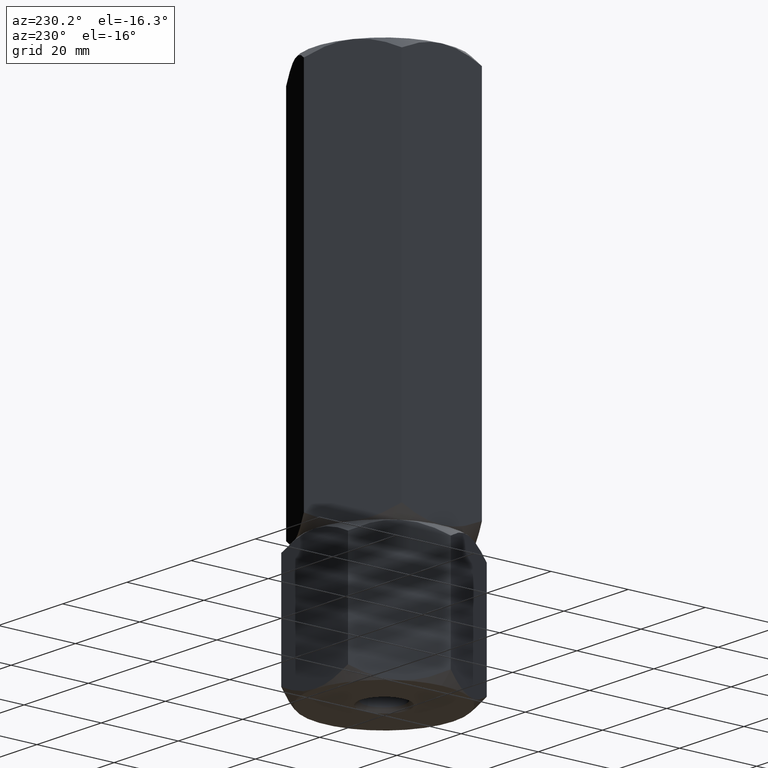
[diagram: clean part render]
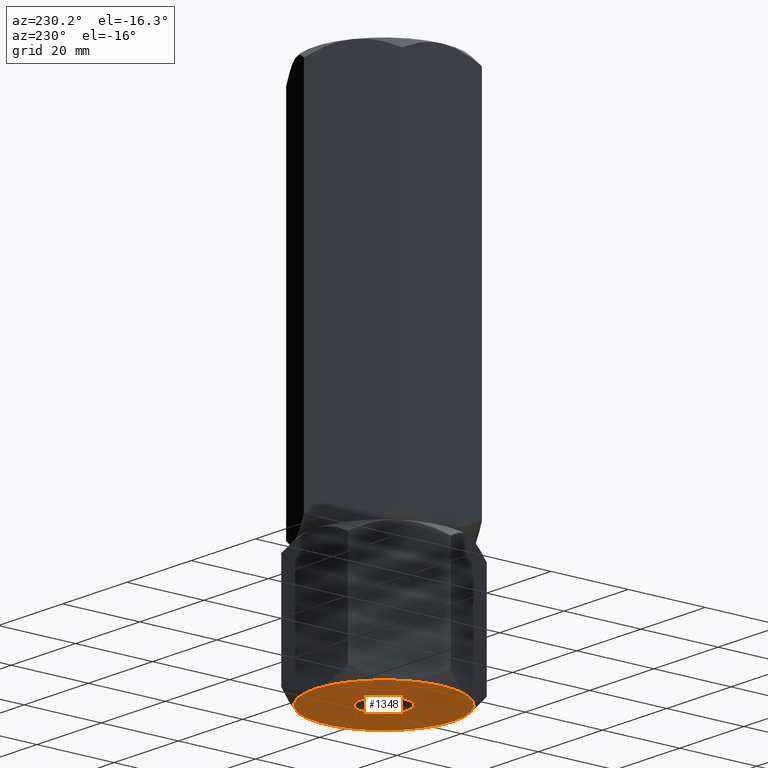
[diagram: same view with one face highlighted and labeled with its STEP entity id]
A machine part, auxiliary view. The second image highlights one B-rep face of the part: STEP entity #1348.
In plain terms, the highlighted planar face has unit normal (0, 0, 1).
Its self-contained STEP definition (entity closure, byte-faithful):
#20 = EDGE_LOOP ( 'NONE', ( #23, #1552 ) ) ;
#23 = ORIENTED_EDGE ( 'NONE', *, *, #140, .T. ) ;
#25 = FACE_OUTER_BOUND ( 'NONE', #1485, .T. ) ;
#44 = EDGE_CURVE ( 'NONE', #90, #1338, #1164, .T. ) ;
#52 = CIRCLE ( 'NONE', #1040, 18.00000000000000000 ) ;
#54 = CIRCLE ( 'NONE', #116, 18.00000000000000000 ) ;
#67 = ORIENTED_EDGE ( 'NONE', *, *, #44, .F. ) ;
#90 = VERTEX_POINT ( 'NONE', #251 ) ;
#111 = CARTESIAN_POINT ( 'NONE',  ( 0.000000000000000000, 0.000000000000000000, 0.000000000000000000 ) ) ;
#116 = AXIS2_PLACEMENT_3D ( 'NONE', #1578, #1291, #1774 ) ;
#126 = DIRECTION ( 'NONE',  ( 1.000000000000000000, 0.000000000000000000, 0.000000000000000000 ) ) ;
#140 = EDGE_CURVE ( 'NONE', #330, #1216, #1662, .T. ) ;
#251 = CARTESIAN_POINT ( 'NONE',  ( 3.004629197474318851E-15, -18.00000000000000000, 0.000000000000000000 ) ) ;
#330 = VERTEX_POINT ( 'NONE', #637 ) ;
#341 = ORIENTED_EDGE ( 'NONE', *, *, #1521, .F. ) ;
#370 = CARTESIAN_POINT ( 'NONE',  ( -15.58845726811989607, -9.000000000000003553, 0.000000000000000000 ) ) ;
#380 = DIRECTION ( 'NONE',  ( 0.000000000000000000, 0.000000000000000000, 1.000000000000000000 ) ) ;
#404 = ORIENTED_EDGE ( 'NONE', *, *, #1481, .F. ) ;
#478 = CARTESIAN_POINT ( 'NONE',  ( 15.58845726811989252, 9.000000000000003553, 0.000000000000000000 ) ) ;
#493 = PLANE ( 'NONE',  #1841 ) ;
#520 = EDGE_CURVE ( 'NONE', #1068, #914, #538, .T. ) ;
#527 = CARTESIAN_POINT ( 'NONE',  ( 0.000000000000000000, 0.000000000000000000, 0.000000000000000000 ) ) ;
#538 = CIRCLE ( 'NONE', #1769, 18.00000000000000000 ) ;
#605 = DIRECTION ( 'NONE',  ( 0.000000000000000000, 0.000000000000000000, 1.000000000000000000 ) ) ;
#633 = CARTESIAN_POINT ( 'NONE',  ( 15.58845726811989429, -9.000000000000001776, 0.000000000000000000 ) ) ;
#637 = CARTESIAN_POINT ( 'NONE',  ( -6.000000000000032863, 0.000000000000000000, 0.000000000000000000 ) ) ;
#640 = CARTESIAN_POINT ( 'NONE',  ( -15.58845726811989607, 8.999999999999996447, 0.000000000000000000 ) ) ;
#657 = DIRECTION ( 'NONE',  ( 1.000000000000000000, 0.000000000000000000, -0.000000000000000000 ) ) ;
#710 = AXIS2_PLACEMENT_3D ( 'NONE', #1209, #729, #920 ) ;
#729 = DIRECTION ( 'NONE',  ( 0.000000000000000000, 0.000000000000000000, 1.000000000000000000 ) ) ;
#743 = AXIS2_PLACEMENT_3D ( 'NONE', #915, #1405, #2026 ) ;
#770 = DIRECTION ( 'NONE',  ( 0.000000000000000000, 0.000000000000000000, -1.000000000000000000 ) ) ;
#795 = VERTEX_POINT ( 'NONE', #478 ) ;
#819 = EDGE_CURVE ( 'NONE', #795, #1967, #52, .T. ) ;
#914 = VERTEX_POINT ( 'NONE', #1952 ) ;
#915 = CARTESIAN_POINT ( 'NONE',  ( 0.000000000000000000, 0.000000000000000000, 0.000000000000000000 ) ) ;
#920 = DIRECTION ( 'NONE',  ( 1.000000000000000000, 0.000000000000000000, 0.000000000000000000 ) ) ;
#1029 = ORIENTED_EDGE ( 'NONE', *, *, #1361, .F. ) ;
#1040 = AXIS2_PLACEMENT_3D ( 'NONE', #1918, #1114, #1296 ) ;
#1068 = VERTEX_POINT ( 'NONE', #640 ) ;
#1114 = DIRECTION ( 'NONE',  ( 0.000000000000000000, 0.000000000000000000, 1.000000000000000000 ) ) ;
#1124 = ORIENTED_EDGE ( 'NONE', *, *, #520, .F. ) ;
#1164 = CIRCLE ( 'NONE', #1432, 18.00000000000000000 ) ;
#1168 = DIRECTION ( 'NONE',  ( 1.000000000000000000, 0.000000000000000000, 0.000000000000000000 ) ) ;
#1209 = CARTESIAN_POINT ( 'NONE',  ( 0.000000000000000000, 0.000000000000000000, 0.000000000000000000 ) ) ;
#1216 = VERTEX_POINT ( 'NONE', #1339 ) ;
#1218 = ORIENTED_EDGE ( 'NONE', *, *, #1923, .T. ) ;
#1227 = CARTESIAN_POINT ( 'NONE',  ( 0.000000000000000000, 0.000000000000000000, 0.000000000000000000 ) ) ;
#1240 = EDGE_CURVE ( 'NONE', #1216, #330, #1804, .T. ) ;
#1244 = DIRECTION ( 'NONE',  ( 0.000000000000000000, 0.000000000000000000, 1.000000000000000000 ) ) ;
#1254 = CARTESIAN_POINT ( 'NONE',  ( 0.000000000000000000, 0.000000000000000000, 0.000000000000000000 ) ) ;
#1260 = CARTESIAN_POINT ( 'NONE',  ( 0.000000000000000000, 18.00000000000000000, 0.000000000000000000 ) ) ;
#1291 = DIRECTION ( 'NONE',  ( 0.000000000000000000, 0.000000000000000000, 1.000000000000000000 ) ) ;
#1296 = DIRECTION ( 'NONE',  ( 1.000000000000000000, 0.000000000000000000, 0.000000000000000000 ) ) ;
#1338 = VERTEX_POINT ( 'NONE', #633 ) ;
#1339 = CARTESIAN_POINT ( 'NONE',  ( 6.000000000000032863, 7.347880794884160165E-16, 0.000000000000000000 ) ) ;
#1348 = ADVANCED_FACE ( 'NONE', ( #1925, #25 ), #493, .F. ) ;
#1361 = EDGE_CURVE ( 'NONE', #1930, #90, #54, .T. ) ;
#1393 = DIRECTION ( 'NONE',  ( 1.000000000000000000, 0.000000000000000000, 0.000000000000000000 ) ) ;
#1395 = DIRECTION ( 'NONE',  ( -1.000000000000000000, 0.000000000000000000, 0.000000000000000000 ) ) ;
#1400 = CIRCLE ( 'NONE', #1735, 18.00000000000000000 ) ;
#1402 = CIRCLE ( 'NONE', #1439, 18.00000000000000000 ) ;
#1405 = DIRECTION ( 'NONE',  ( 0.000000000000000000, 0.000000000000000000, 1.000000000000000000 ) ) ;
#1423 = DIRECTION ( 'NONE',  ( 1.000000000000000000, 0.000000000000000000, 0.000000000000000000 ) ) ;
#1432 = AXIS2_PLACEMENT_3D ( 'NONE', #527, #380, #1168 ) ;
#1439 = AXIS2_PLACEMENT_3D ( 'NONE', #111, #770, #1395 ) ;
#1481 = EDGE_CURVE ( 'NONE', #1338, #795, #2041, .T. ) ;
#1485 = EDGE_LOOP ( 'NONE', ( #1889, #404, #67, #1029, #341, #1124, #1218 ) ) ;
#1521 = EDGE_CURVE ( 'NONE', #914, #1930, #1400, .T. ) ;
#1548 = DIRECTION ( 'NONE',  ( 0.000000000000000000, 0.000000000000000000, 1.000000000000000000 ) ) ;
#1552 = ORIENTED_EDGE ( 'NONE', *, *, #1240, .T. ) ;
#1578 = CARTESIAN_POINT ( 'NONE',  ( 0.000000000000000000, 0.000000000000000000, 0.000000000000000000 ) ) ;
#1662 = CIRCLE ( 'NONE', #1702, 6.000000000000032863 ) ;
#1702 = AXIS2_PLACEMENT_3D ( 'NONE', #1996, #605, #1393 ) ;
#1728 = DIRECTION ( 'NONE',  ( 0.000000000000000000, 0.000000000000000000, 1.000000000000000000 ) ) ;
#1735 = AXIS2_PLACEMENT_3D ( 'NONE', #1254, #1244, #1423 ) ;
#1761 = CARTESIAN_POINT ( 'NONE',  ( 0.000000000000000000, 0.000000000000000000, 0.000000000000000000 ) ) ;
#1769 = AXIS2_PLACEMENT_3D ( 'NONE', #1227, #1548, #126 ) ;
#1774 = DIRECTION ( 'NONE',  ( 1.000000000000000000, 0.000000000000000000, 0.000000000000000000 ) ) ;
#1804 = CIRCLE ( 'NONE', #743, 6.000000000000032863 ) ;
#1841 = AXIS2_PLACEMENT_3D ( 'NONE', #1761, #1728, #657 ) ;
#1889 = ORIENTED_EDGE ( 'NONE', *, *, #819, .F. ) ;
#1918 = CARTESIAN_POINT ( 'NONE',  ( 0.000000000000000000, 0.000000000000000000, 0.000000000000000000 ) ) ;
#1923 = EDGE_CURVE ( 'NONE', #1068, #1967, #1402, .T. ) ;
#1925 = FACE_BOUND ( 'NONE', #20, .T. ) ;
#1930 = VERTEX_POINT ( 'NONE', #370 ) ;
#1952 = CARTESIAN_POINT ( 'NONE',  ( -18.00000000000000000, 0.000000000000000000, 0.000000000000000000 ) ) ;
#1967 = VERTEX_POINT ( 'NONE', #1260 ) ;
#1996 = CARTESIAN_POINT ( 'NONE',  ( 0.000000000000000000, 0.000000000000000000, 0.000000000000000000 ) ) ;
#2026 = DIRECTION ( 'NONE',  ( 1.000000000000000000, 0.000000000000000000, 0.000000000000000000 ) ) ;
#2041 = CIRCLE ( 'NONE', #710, 18.00000000000000000 ) ;